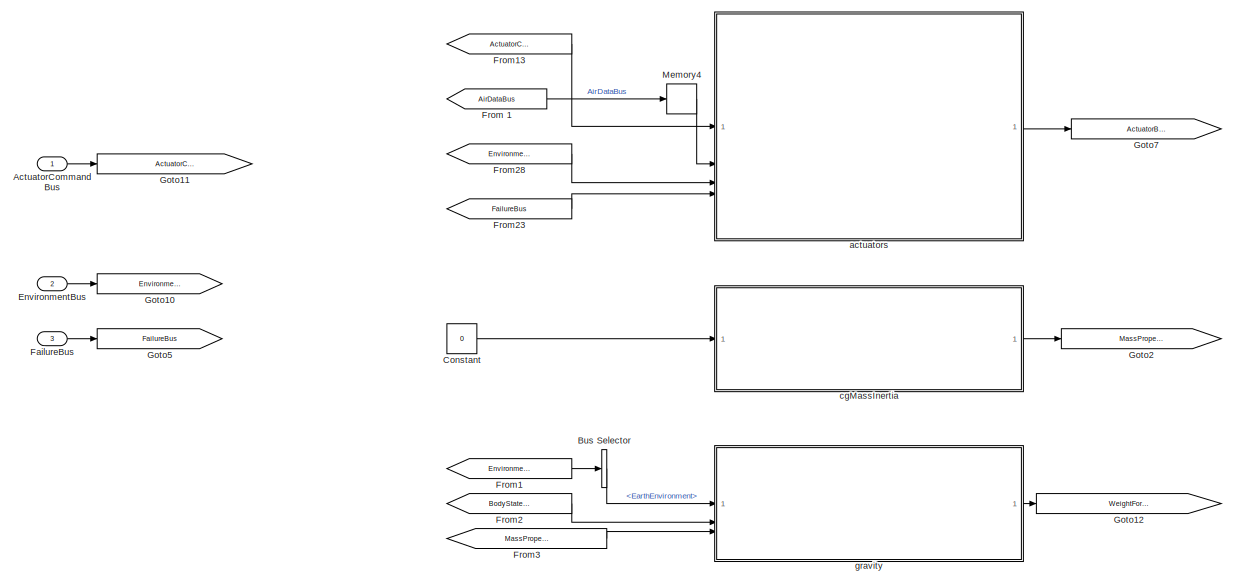
[diagram: root canvas - part 1/3, left side, full height]
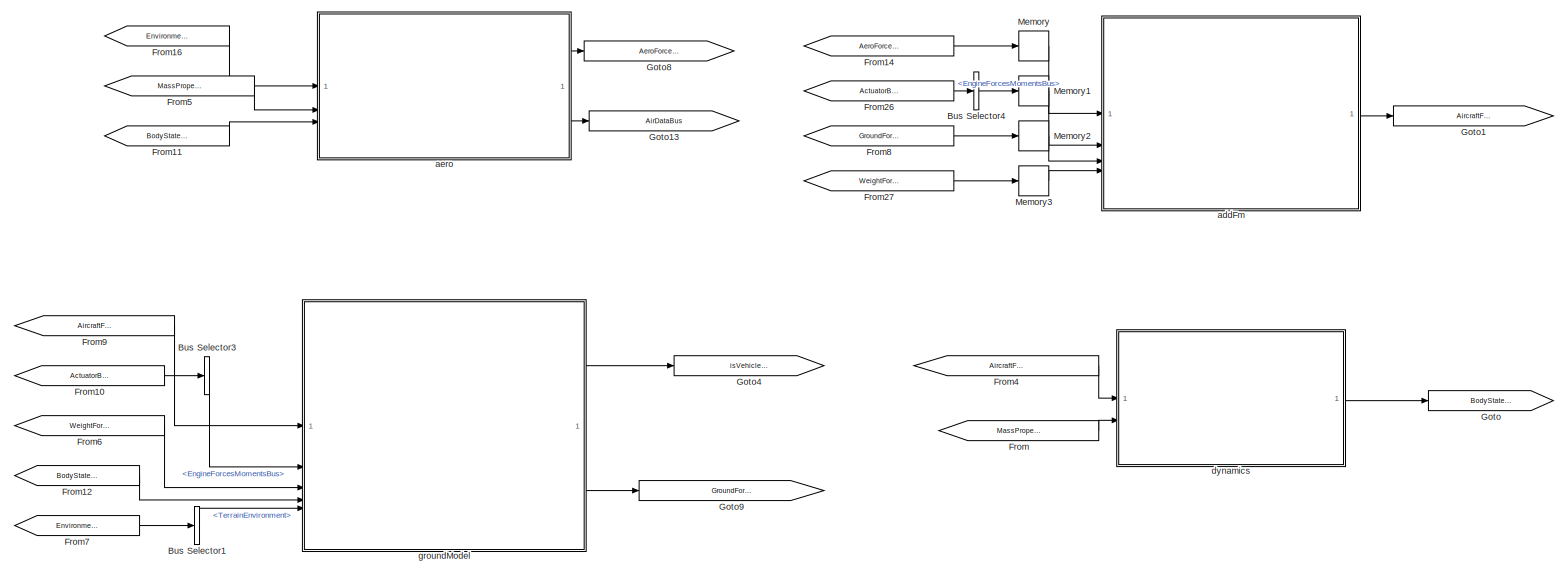
[diagram: root canvas - part 2/3, center side, full height]
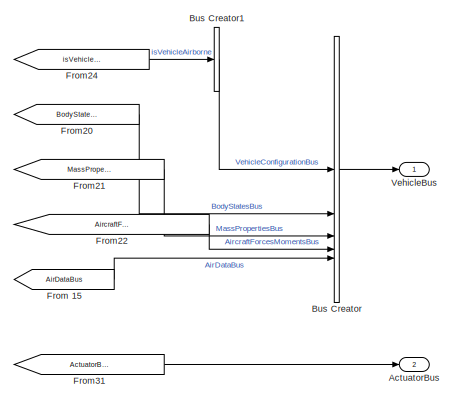
[diagram: root canvas - part 3/3, middle right region]
MODEL slx_1c2fc9176daf
KIND model
BLOCK [Outport] ActuatorBus
  OutDataTypeStr = Bus: ActuatorBus
  Port = 2
BLOCK [Inport] ActuatorCommandBus
  OutDataTypeStr = Bus: ActuatorCommandBus
BLOCK [BusCreator] Bus Creator
  DisplayOption = bar
  InheritFromInputs = on
  Inputs = 5
  OutDataTypeStr = Bus: VehicleBus
BLOCK [BusCreator] Bus Creator1
  DisplayOption = bar
  InheritFromInputs = on
  Inputs = 1
  OutDataTypeStr = Bus: VehicleConfigurationBus
BLOCK [BusSelector] Bus Selector
  OutputSignals = EarthEnvironment
BLOCK [BusSelector] Bus Selector1
  OutputSignals = TerrainEnvironment
BLOCK [BusSelector] Bus Selector3
  OutputSignals = PropulsionBus.EngineForcesMomentsBus
BLOCK [BusSelector] Bus Selector4
  OutputSignals = PropulsionBus.EngineForcesMomentsBus
BLOCK [Constant] Constant
  Value = 0
BLOCK [Inport] EnvironmentBus
  OutDataTypeStr = Bus: EnvironmentBus
  Port = 2
BLOCK [Inport] FailureBus
  OutDataTypeStr = Bus: FailureBus
  Port = 3
BLOCK [From] From
  GotoTag = MassPropertiesBus
BLOCK [From] From 1
  GotoTag = AirDataBus
BLOCK [From] From 15
  GotoTag = AirDataBus
BLOCK [From] From1
  GotoTag = EnvironmentBus
BLOCK [From] From10
  GotoTag = ActuatorBus
BLOCK [From] From11
  GotoTag = BodyStatesBus
BLOCK [From] From12
  GotoTag = BodyStatesBus
BLOCK [From] From13
  GotoTag = ActuatorCommandBus
BLOCK [From] From14
  GotoTag = AeroForcesMomentsBus
BLOCK [From] From16
  GotoTag = EnvironmentBus
BLOCK [From] From2
  GotoTag = BodyStatesBus
BLOCK [From] From20
  GotoTag = BodyStatesBus
BLOCK [From] From21
  GotoTag = MassPropertiesBus
BLOCK [From] From22
  GotoTag = AircraftForcesMomentsBus
BLOCK [From] From23
  GotoTag = FailureBus
BLOCK [From] From24
  GotoTag = isVehicleAirborne
BLOCK [From] From26
  GotoTag = ActuatorBus
BLOCK [From] From27
  GotoTag = WeightForcesMomentsBus
BLOCK [From] From28
  GotoTag = EnvironmentBus
BLOCK [From] From3
  GotoTag = MassPropertiesBus
BLOCK [From] From31
  GotoTag = ActuatorBus
BLOCK [From] From4
  GotoTag = AircraftForcesMomentsBus
BLOCK [From] From5
  GotoTag = MassPropertiesBus
BLOCK [From] From6
  GotoTag = WeightForcesMomentsBus
BLOCK [From] From7
  GotoTag = EnvironmentBus
BLOCK [From] From8
  GotoTag = GroundForcesMomentsBus
BLOCK [From] From9
  GotoTag = AircraftForcesMomentsBus
BLOCK [Goto] Goto
  GotoTag = BodyStatesBus
BLOCK [Goto] Goto1
  GotoTag = AircraftForcesMomentsBus
BLOCK [Goto] Goto10
  GotoTag = EnvironmentBus
BLOCK [Goto] Goto11
  GotoTag = ActuatorCommandBus
BLOCK [Goto] Goto12
  GotoTag = WeightForcesMomentsBus
BLOCK [Goto] Goto13
  GotoTag = AirDataBus
BLOCK [Goto] Goto2
  GotoTag = MassPropertiesBus
BLOCK [Goto] Goto4
  GotoTag = isVehicleAirborne
BLOCK [Goto] Goto5
  GotoTag = FailureBus
BLOCK [Goto] Goto7
  GotoTag = ActuatorBus
BLOCK [Goto] Goto8
  GotoTag = AeroForcesMomentsBus
BLOCK [Goto] Goto9
  GotoTag = GroundForcesMomentsBus
BLOCK [Memory] Memory
BLOCK [Memory] Memory1
BLOCK [Memory] Memory2
BLOCK [Memory] Memory3
BLOCK [Memory] Memory4
BLOCK [Outport] VehicleBus
  OutDataTypeStr = Bus: VehicleBus
BLOCK [ModelReference] actuators
  ModelNameDialog = hexActuator.slx
  ModelReferenceVersion = 1.37
BLOCK [ModelReference] addFm
  ModelNameDialog = hexAddFm.slx
  ModelReferenceVersion = 1.14
BLOCK [ModelReference] aero
  ModelNameDialog = hexAero.slx
  ModelReferenceVersion = 1.15
BLOCK [ModelReference] cgMassInertia
  ModelNameDialog = cgMassInertia.slx
  ModelReferenceVersion = 1.43
BLOCK [ModelReference] dynamics
  ModelNameDialog = inertialDynamics.slx
  ModelReferenceVersion = 1.35
BLOCK [ModelReference] gravity
  ModelNameDialog = gravity.slx
  ModelReferenceVersion = 1.28
BLOCK [ModelReference] groundModel
  ModelNameDialog = hexGroundContact.slx
  ModelReferenceVersion = 1.64
LINE ActuatorCommandBus:1 -> Goto11:1
LINE Bus Creator1:1 -> Bus Creator:1
LINE Bus Creator:1 -> VehicleBus:1
LINE Bus Selector1:1 -> groundModel:5
LINE Bus Selector3:1 -> groundModel:2
LINE Bus Selector4:1 -> Memory1:1
LINE Bus Selector:1 -> gravity:1
LINE Constant:1 -> cgMassInertia:1
LINE EnvironmentBus:1 -> Goto10:1
LINE FailureBus:1 -> Goto5:1
LINE From 15:1 -> Bus Creator:5
LINE From 1:1 -> Memory4:1
LINE From10:1 -> Bus Selector3:1
LINE From11:1 -> aero:3
LINE From12:1 -> groundModel:4
LINE From13:1 -> actuators:1
LINE From14:1 -> Memory:1
LINE From16:1 -> aero:1
LINE From1:1 -> Bus Selector:1
LINE From20:1 -> Bus Creator:2
LINE From21:1 -> Bus Creator:3
LINE From22:1 -> Bus Creator:4
LINE From23:1 -> actuators:4
LINE From24:1 -> Bus Creator1:1
LINE From26:1 -> Bus Selector4:1
LINE From27:1 -> Memory3:1
LINE From28:1 -> actuators:3
LINE From2:1 -> gravity:2
LINE From31:1 -> ActuatorBus:1
LINE From3:1 -> gravity:3
LINE From4:1 -> dynamics:1
LINE From5:1 -> aero:2
LINE From6:1 -> groundModel:3
LINE From7:1 -> Bus Selector1:1
LINE From8:1 -> Memory2:1
LINE From9:1 -> groundModel:1
LINE From:1 -> dynamics:2
LINE Memory1:1 -> addFm:2
LINE Memory2:1 -> addFm:3
LINE Memory3:1 -> addFm:4
LINE Memory4:1 -> actuators:2
LINE Memory:1 -> addFm:1
LINE actuators:1 -> Goto7:1
LINE addFm:1 -> Goto1:1
LINE aero:1 -> Goto8:1
LINE aero:2 -> Goto13:1
LINE cgMassInertia:1 -> Goto2:1
LINE dynamics:1 -> Goto:1
LINE gravity:1 -> Goto12:1
LINE groundModel:1 -> Goto4:1
LINE groundModel:2 -> Goto9:1
